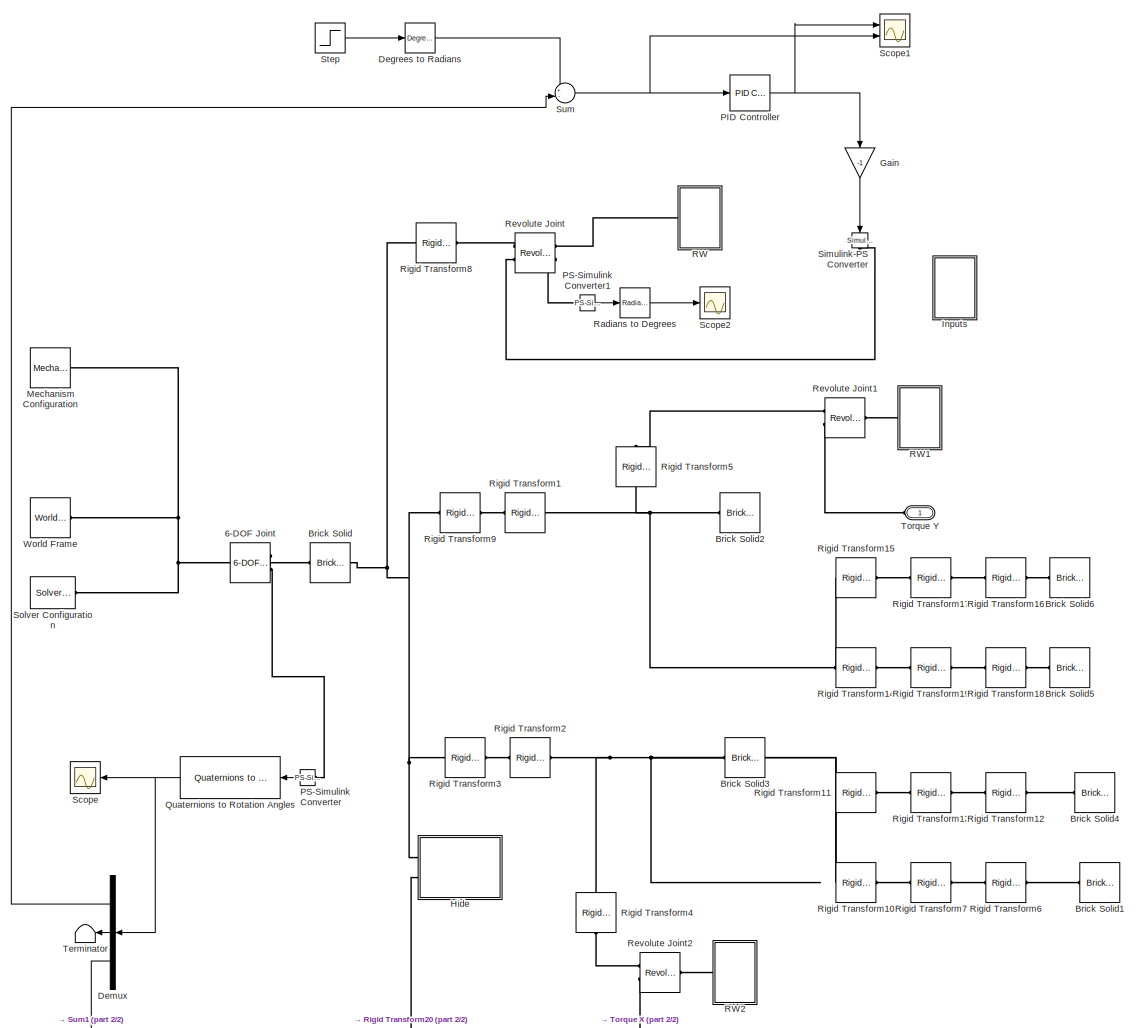
[diagram: root canvas - part 1/2, full width, top band]
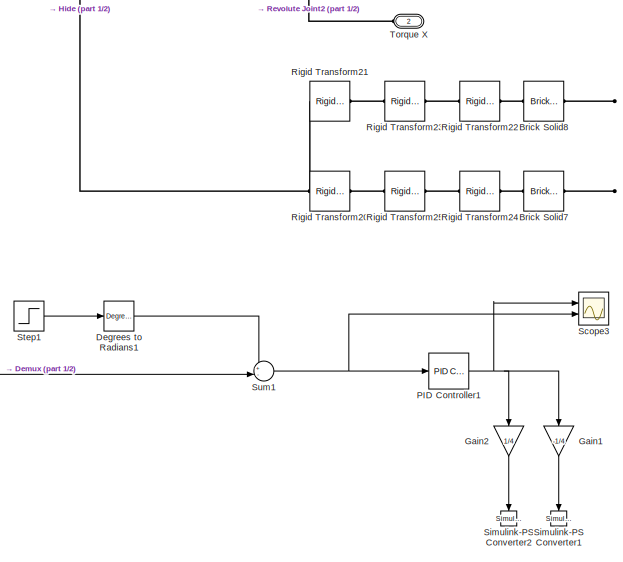
[diagram: root canvas - part 2/2, bottom center region]
MODEL slx_54c2c7942b76
KIND model
CONFIG AbsTol = auto
CONFIG EnableMultiTasking = off
CONFIG FixedStep = 0.01
CONFIG MaxStep = auto
CONFIG MinStep = auto
CONFIG RelTol = 1e-3
CONFIG SampleTimeConstraint = Unconstrained
CONFIG Solver = FixedStepAuto
CONFIG SolverName = FixedStepAuto
CONFIG StartTime = 0.0
CONFIG StopTime = 400
BLOCK [Reference] 6-DOF Joint  REF=sm_lib/Joints/6-DOF Joint
  Ports = [0, 0, 0, 0, 0, 1, 2]
  SourceBlock = sm_lib/Joints/6-DOF Joint
  SourceProductBaseCode = MS
  SourceProductName = Simscape Multibody
  SourceType = 6-DOF Joint
BLOCK [Reference] Brick Solid  REF=sm_lib/Body Elements/Brick Solid
  Ports = [0, 0, 0, 0, 0, 1, 1]
  SourceBlock = sm_lib/Body Elements/Brick Solid
  SourceProductBaseCode = MS
  SourceProductName = Simscape Multibody
  SourceType = Brick Solid
BLOCK [Reference] Brick Solid1  REF=sm_lib/Body Elements/Brick Solid
  Ports = [0, 0, 0, 0, 0, 1, 1]
  SourceBlock = sm_lib/Body Elements/Brick Solid
  SourceProductBaseCode = MS
  SourceProductName = Simscape Multibody
  SourceType = Brick Solid
BLOCK [Reference] Brick Solid2  REF=sm_lib/Body Elements/Brick Solid
  Ports = [0, 0, 0, 0, 0, 0, 1]
  SourceBlock = sm_lib/Body Elements/Brick Solid
  SourceProductBaseCode = MS
  SourceProductName = Simscape Multibody
  SourceType = Brick Solid
BLOCK [Reference] Brick Solid3  REF=sm_lib/Body Elements/Brick Solid
  Ports = [0, 0, 0, 0, 0, 0, 1]
  SourceBlock = sm_lib/Body Elements/Brick Solid
  SourceProductBaseCode = MS
  SourceProductName = Simscape Multibody
  SourceType = Brick Solid
BLOCK [Reference] Brick Solid4  REF=sm_lib/Body Elements/Brick Solid
  Ports = [0, 0, 0, 0, 0, 1, 1]
  SourceBlock = sm_lib/Body Elements/Brick Solid
  SourceProductBaseCode = MS
  SourceProductName = Simscape Multibody
  SourceType = Brick Solid
BLOCK [Reference] Brick Solid5  REF=sm_lib/Body Elements/Brick Solid
  Commented = on
  Ports = [0, 0, 0, 0, 0, 0, 1]
  SourceBlock = sm_lib/Body Elements/Brick Solid
  SourceProductBaseCode = MS
  SourceProductName = Simscape Multibody
  SourceType = Brick Solid
BLOCK [Reference] Brick Solid6  REF=sm_lib/Body Elements/Brick Solid
  Commented = on
  Ports = [0, 0, 0, 0, 0, 0, 1]
  SourceBlock = sm_lib/Body Elements/Brick Solid
  SourceProductBaseCode = MS
  SourceProductName = Simscape Multibody
  SourceType = Brick Solid
BLOCK [Reference] Brick Solid7  REF=sm_lib/Body Elements/Brick Solid
  Ports = [0, 0, 0, 0, 0, 1, 1]
  SourceBlock = sm_lib/Body Elements/Brick Solid
  SourceProductBaseCode = MS
  SourceProductName = Simscape Multibody
  SourceType = Brick Solid
BLOCK [Reference] Brick Solid8  REF=sm_lib/Body Elements/Brick Solid
  Ports = [0, 0, 0, 0, 0, 1, 1]
  SourceBlock = sm_lib/Body Elements/Brick Solid
  SourceProductBaseCode = MS
  SourceProductName = Simscape Multibody
  SourceType = Brick Solid
BLOCK [Reference] Degrees to Radians  REF=simulink_extras/Transformations/Degrees to
Radians
  Ports = [1, 1]
  SourceBlock = simulink_extras/Transformations/Degrees to\nRadians
  SourceProductBaseCode = SL
  SourceProductName = Simulink
  SourceType = DegreesToRadians
BLOCK [Reference] Degrees to Radians1  REF=simulink_extras/Transformations/Degrees to
Radians
  Ports = [1, 1]
  SourceBlock = simulink_extras/Transformations/Degrees to\nRadians
  SourceProductBaseCode = SL
  SourceProductName = Simulink
  SourceType = DegreesToRadians
BLOCK [Demux] Demux
  DisplayOption = bar
  Outputs = 3
  Ports = [1, 3]
BLOCK [Gain] Gain
  Gain = -1
  OutDataTypeStr = Inherit: Inherit via internal rule
  ParamDataTypeStr = Inherit: Inherit via internal rule
  SaturateOnIntegerOverflow = off
BLOCK [Gain] Gain1
  Gain = -1/4
  OutDataTypeStr = Inherit: Inherit via internal rule
  ParamDataTypeStr = Inherit: Inherit via internal rule
  SaturateOnIntegerOverflow = off
BLOCK [Gain] Gain2
  Gain = 1/4
  OutDataTypeStr = Inherit: Inherit via internal rule
  ParamDataTypeStr = Inherit: Inherit via internal rule
  SaturateOnIntegerOverflow = off
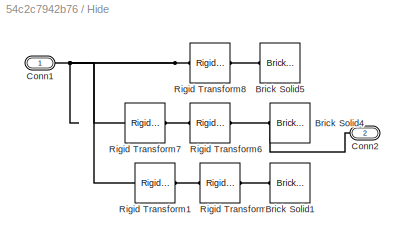
BLOCK [SubSystem] Hide
  Ports = [0, 0, 0, 0, 0, 2]
  RequestExecContextInheritance = off
BLOCK [Reference] Hide/Brick Solid1  REF=sm_lib/Body Elements/Brick Solid
  Ports = [0, 0, 0, 0, 0, 0, 1]
  SourceBlock = sm_lib/Body Elements/Brick Solid
  SourceProductBaseCode = MS
  SourceProductName = Simscape Multibody
  SourceType = Brick Solid
BLOCK [Reference] Hide/Brick Solid4  REF=sm_lib/Body Elements/Brick Solid
  Ports = [0, 0, 0, 0, 0, 0, 1]
  SourceBlock = sm_lib/Body Elements/Brick Solid
  SourceProductBaseCode = MS
  SourceProductName = Simscape Multibody
  SourceType = Brick Solid
BLOCK [Reference] Hide/Brick Solid5  REF=sm_lib/Body Elements/Brick Solid
  Ports = [0, 0, 0, 0, 0, 0, 1]
  SourceBlock = sm_lib/Body Elements/Brick Solid
  SourceProductBaseCode = MS
  SourceProductName = Simscape Multibody
  SourceType = Brick Solid
BLOCK [PMIOPort] Hide/Conn1
  Side = Left
BLOCK [PMIOPort] Hide/Conn2
  Port = 2
  Side = Left
BLOCK [Reference] Hide/Rigid Transform  REF=sm_lib/Frames and
Transforms/Rigid
Transform
  Ports = [0, 0, 0, 0, 0, 1, 1]
  SourceBlock = sm_lib/Frames and\nTransforms/Rigid\nTransform
  SourceProductBaseCode = MS
  SourceProductName = Simscape Multibody
  SourceType = Rigid\nTransform
BLOCK [Reference] Hide/Rigid Transform1  REF=sm_lib/Frames and
Transforms/Rigid
Transform
  Ports = [0, 0, 0, 0, 0, 1, 1]
  SourceBlock = sm_lib/Frames and\nTransforms/Rigid\nTransform
  SourceProductBaseCode = MS
  SourceProductName = Simscape Multibody
  SourceType = Rigid\nTransform
BLOCK [Reference] Hide/Rigid Transform6  REF=sm_lib/Frames and
Transforms/Rigid
Transform
  Ports = [0, 0, 0, 0, 0, 1, 1]
  SourceBlock = sm_lib/Frames and\nTransforms/Rigid\nTransform
  SourceProductBaseCode = MS
  SourceProductName = Simscape Multibody
  SourceType = Rigid\nTransform
BLOCK [Reference] Hide/Rigid Transform7  REF=sm_lib/Frames and
Transforms/Rigid
Transform
  Ports = [0, 0, 0, 0, 0, 1, 1]
  SourceBlock = sm_lib/Frames and\nTransforms/Rigid\nTransform
  SourceProductBaseCode = MS
  SourceProductName = Simscape Multibody
  SourceType = Rigid\nTransform
BLOCK [Reference] Hide/Rigid Transform8  REF=sm_lib/Frames and
Transforms/Rigid
Transform
  Ports = [0, 0, 0, 0, 0, 1, 1]
  SourceBlock = sm_lib/Frames and\nTransforms/Rigid\nTransform
  SourceProductBaseCode = MS
  SourceProductName = Simscape Multibody
  SourceType = Rigid\nTransform
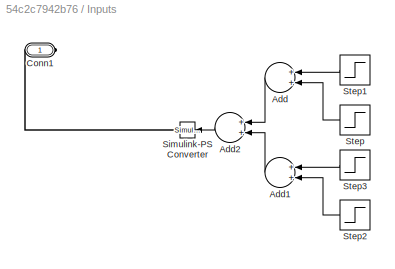
BLOCK [SubSystem] Inputs
  Commented = on
  Ports = [0, 0, 0, 0, 0, 0, 1]
  RequestExecContextInheritance = off
BLOCK [Sum] Inputs/Add
  InputSameDT = off
  OutDataTypeStr = Inherit: Inherit via internal rule
  Ports = [2, 1]
  SaturateOnIntegerOverflow = off
BLOCK [Sum] Inputs/Add1
  InputSameDT = off
  OutDataTypeStr = Inherit: Inherit via internal rule
  Ports = [2, 1]
  SaturateOnIntegerOverflow = off
BLOCK [Sum] Inputs/Add2
  InputSameDT = off
  OutDataTypeStr = Inherit: Inherit via internal rule
  Ports = [2, 1]
  SaturateOnIntegerOverflow = off
BLOCK [PMIOPort] Inputs/Conn1
  Side = Right
BLOCK [Reference] Inputs/Simulink-PS Converter  REF=nesl_utility/Simulink-PS
Converter
  Ports = [1, 0, 0, 0, 0, 0, 1]
  SourceBlock = nesl_utility/Simulink-PS\nConverter
  SourceProductBaseCode = SS
  SourceProductName = Simscape
  SourceType = Simulink-PS\nConverter
BLOCK [Step] Inputs/Step
  After = -10
  SampleTime = 0
  Time = 5
BLOCK [Step] Inputs/Step1
  After = 10
  SampleTime = 0
  Time = 3
BLOCK [Step] Inputs/Step2
  After = 10
  SampleTime = 0
  Time = 10
BLOCK [Step] Inputs/Step3
  After = -10
  SampleTime = 0
  Time = 8
BLOCK [Reference] Mechanism Configuration  REF=sm_lib/Utilities/Mechanism
Configuration
  Ports = [0, 0, 0, 0, 0, 0, 1]
  SourceBlock = sm_lib/Utilities/Mechanism\nConfiguration
  SourceProductBaseCode = MS
  SourceProductName = Simscape Multibody
  SourceType = Mechanism\nConfiguration
BLOCK [Reference] PID Controller  REF=simulink/Continuous/PID Controller
  Ports = [1, 1]
  SourceBlock = simulink/Continuous/PID Controller
  SourceProductBaseCode = SL
  SourceProductName = Simulink
  SourceType = PID 1dof
BLOCK [Reference] PID Controller1  REF=simulink/Continuous/PID Controller
  Ports = [1, 1]
  SourceBlock = simulink/Continuous/PID Controller
  SourceProductBaseCode = SL
  SourceProductName = Simulink
  SourceType = PID 1dof
BLOCK [Reference] PS-Simulink Converter  REF=nesl_utility/PS-Simulink
Converter
  Ports = [0, 1, 0, 0, 0, 1]
  SourceBlock = nesl_utility/PS-Simulink\nConverter
  SourceProductBaseCode = SS
  SourceProductName = Simscape
  SourceType = PS-Simulink\nConverter
BLOCK [Reference] PS-Simulink Converter1  REF=nesl_utility/PS-Simulink
Converter
  Ports = [0, 1, 0, 0, 0, 1]
  SourceBlock = nesl_utility/PS-Simulink\nConverter
  SourceProductBaseCode = SS
  SourceProductName = Simscape
  SourceType = PS-Simulink\nConverter
BLOCK [Reference] Quaternions to Rotation Angles  REF=sharedtransform/Quaternions to Rotation Angles
  AttributesFormatString = Rotation Order: %<rotationOrder>
  Ports = [1, 1]
  SourceBlock = sharedtransform/Quaternions to Rotation Angles
  SourceProductBaseCode = AE
  SourceProductName = Aerospace Blockset
  SourceType = Quat2Ang
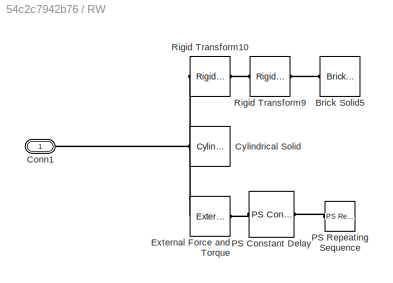
BLOCK [SubSystem] RW
  Ports = [0, 0, 0, 0, 0, 1]
  RequestExecContextInheritance = off
BLOCK [Reference] RW/Brick Solid5  REF=sm_lib/Body Elements/Brick Solid
  Ports = [0, 0, 0, 0, 0, 0, 1]
  SourceBlock = sm_lib/Body Elements/Brick Solid
  SourceProductBaseCode = MS
  SourceProductName = Simscape Multibody
  SourceType = Brick Solid
BLOCK [PMIOPort] RW/Conn1
  Side = Left
BLOCK [Reference] RW/Cylindrical Solid  REF=sm_lib/Body Elements/Cylindrical Solid
  Ports = [0, 0, 0, 0, 0, 0, 1]
  SourceBlock = sm_lib/Body Elements/Cylindrical Solid
  SourceProductBaseCode = MS
  SourceProductName = Simscape Multibody
  SourceType = Cylindrical Solid
BLOCK [Reference] RW/External Force and Torque  REF=sm_lib/Forces and
Torques/External Force
and Torque
  Commented = on
  Ports = [0, 0, 0, 0, 0, 1, 1]
  SourceBlock = sm_lib/Forces and\nTorques/External Force\nand Torque
  SourceProductBaseCode = MS
  SourceProductName = Simscape Multibody
  SourceType = External Force\nand Torque
BLOCK [Reference] RW/PS Constant Delay  REF=fl_lib/Physical Signals/Delays/PS Constant Delay
  Commented = on
  Ports = [0, 0, 0, 0, 0, 1, 1]
  SourceBlock = fl_lib/Physical Signals/Delays/PS Constant Delay
  SourceProductBaseCode = SS
  SourceProductName = Simscape
  SourceType = PS Constant Delay
BLOCK [Reference] RW/PS Repeating Sequence  REF=fl_lib/Physical Signals/Sources/PS Repeating
Sequence
  Commented = on
  Ports = [0, 0, 0, 0, 0, 0, 1]
  SourceBlock = fl_lib/Physical Signals/Sources/PS Repeating\nSequence
  SourceProductBaseCode = SS
  SourceProductName = Simscape
  SourceType = PS Repeating\nSequence
BLOCK [Reference] RW/Rigid Transform10  REF=sm_lib/Frames and
Transforms/Rigid
Transform
  Ports = [0, 0, 0, 0, 0, 1, 1]
  SourceBlock = sm_lib/Frames and\nTransforms/Rigid\nTransform
  SourceProductBaseCode = MS
  SourceProductName = Simscape Multibody
  SourceType = Rigid\nTransform
BLOCK [Reference] RW/Rigid Transform9  REF=sm_lib/Frames and
Transforms/Rigid
Transform
  Ports = [0, 0, 0, 0, 0, 1, 1]
  SourceBlock = sm_lib/Frames and\nTransforms/Rigid\nTransform
  SourceProductBaseCode = MS
  SourceProductName = Simscape Multibody
  SourceType = Rigid\nTransform
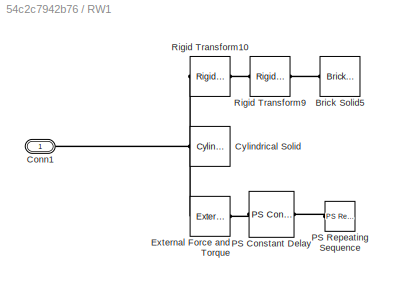
BLOCK [SubSystem] RW1
  Ports = [0, 0, 0, 0, 0, 1]
  RequestExecContextInheritance = off
BLOCK [Reference] RW1/Brick Solid5  REF=sm_lib/Body Elements/Brick Solid
  Ports = [0, 0, 0, 0, 0, 0, 1]
  SourceBlock = sm_lib/Body Elements/Brick Solid
  SourceProductBaseCode = MS
  SourceProductName = Simscape Multibody
  SourceType = Brick Solid
BLOCK [PMIOPort] RW1/Conn1
  Side = Left
BLOCK [Reference] RW1/Cylindrical Solid  REF=sm_lib/Body Elements/Cylindrical Solid
  Ports = [0, 0, 0, 0, 0, 0, 1]
  SourceBlock = sm_lib/Body Elements/Cylindrical Solid
  SourceProductBaseCode = MS
  SourceProductName = Simscape Multibody
  SourceType = Cylindrical Solid
BLOCK [Reference] RW1/External Force and Torque  REF=sm_lib/Forces and
Torques/External Force
and Torque
  Commented = on
  Ports = [0, 0, 0, 0, 0, 1, 1]
  SourceBlock = sm_lib/Forces and\nTorques/External Force\nand Torque
  SourceProductBaseCode = MS
  SourceProductName = Simscape Multibody
  SourceType = External Force\nand Torque
BLOCK [Reference] RW1/PS Constant Delay  REF=fl_lib/Physical Signals/Delays/PS Constant Delay
  Commented = on
  Ports = [0, 0, 0, 0, 0, 1, 1]
  SourceBlock = fl_lib/Physical Signals/Delays/PS Constant Delay
  SourceProductBaseCode = SS
  SourceProductName = Simscape
  SourceType = PS Constant Delay
BLOCK [Reference] RW1/PS Repeating Sequence  REF=fl_lib/Physical Signals/Sources/PS Repeating
Sequence
  Commented = on
  Ports = [0, 0, 0, 0, 0, 0, 1]
  SourceBlock = fl_lib/Physical Signals/Sources/PS Repeating\nSequence
  SourceProductBaseCode = SS
  SourceProductName = Simscape
  SourceType = PS Repeating\nSequence
BLOCK [Reference] RW1/Rigid Transform10  REF=sm_lib/Frames and
Transforms/Rigid
Transform
  Ports = [0, 0, 0, 0, 0, 1, 1]
  SourceBlock = sm_lib/Frames and\nTransforms/Rigid\nTransform
  SourceProductBaseCode = MS
  SourceProductName = Simscape Multibody
  SourceType = Rigid\nTransform
BLOCK [Reference] RW1/Rigid Transform9  REF=sm_lib/Frames and
Transforms/Rigid
Transform
  Ports = [0, 0, 0, 0, 0, 1, 1]
  SourceBlock = sm_lib/Frames and\nTransforms/Rigid\nTransform
  SourceProductBaseCode = MS
  SourceProductName = Simscape Multibody
  SourceType = Rigid\nTransform
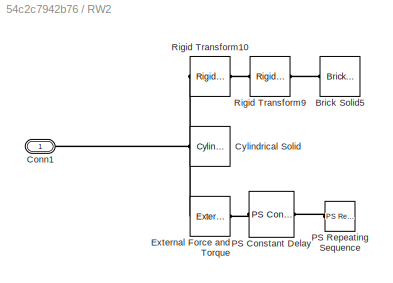
BLOCK [SubSystem] RW2
  Ports = [0, 0, 0, 0, 0, 1]
  RequestExecContextInheritance = off
BLOCK [Reference] RW2/Brick Solid5  REF=sm_lib/Body Elements/Brick Solid
  Ports = [0, 0, 0, 0, 0, 0, 1]
  SourceBlock = sm_lib/Body Elements/Brick Solid
  SourceProductBaseCode = MS
  SourceProductName = Simscape Multibody
  SourceType = Brick Solid
BLOCK [PMIOPort] RW2/Conn1
  Side = Left
BLOCK [Reference] RW2/Cylindrical Solid  REF=sm_lib/Body Elements/Cylindrical Solid
  Ports = [0, 0, 0, 0, 0, 0, 1]
  SourceBlock = sm_lib/Body Elements/Cylindrical Solid
  SourceProductBaseCode = MS
  SourceProductName = Simscape Multibody
  SourceType = Cylindrical Solid
BLOCK [Reference] RW2/External Force and Torque  REF=sm_lib/Forces and
Torques/External Force
and Torque
  Commented = on
  Ports = [0, 0, 0, 0, 0, 1, 1]
  SourceBlock = sm_lib/Forces and\nTorques/External Force\nand Torque
  SourceProductBaseCode = MS
  SourceProductName = Simscape Multibody
  SourceType = External Force\nand Torque
BLOCK [Reference] RW2/PS Constant Delay  REF=fl_lib/Physical Signals/Delays/PS Constant Delay
  Commented = on
  Ports = [0, 0, 0, 0, 0, 1, 1]
  SourceBlock = fl_lib/Physical Signals/Delays/PS Constant Delay
  SourceProductBaseCode = SS
  SourceProductName = Simscape
  SourceType = PS Constant Delay
BLOCK [Reference] RW2/PS Repeating Sequence  REF=fl_lib/Physical Signals/Sources/PS Repeating
Sequence
  Commented = on
  Ports = [0, 0, 0, 0, 0, 0, 1]
  SourceBlock = fl_lib/Physical Signals/Sources/PS Repeating\nSequence
  SourceProductBaseCode = SS
  SourceProductName = Simscape
  SourceType = PS Repeating\nSequence
BLOCK [Reference] RW2/Rigid Transform10  REF=sm_lib/Frames and
Transforms/Rigid
Transform
  Ports = [0, 0, 0, 0, 0, 1, 1]
  SourceBlock = sm_lib/Frames and\nTransforms/Rigid\nTransform
  SourceProductBaseCode = MS
  SourceProductName = Simscape Multibody
  SourceType = Rigid\nTransform
BLOCK [Reference] RW2/Rigid Transform9  REF=sm_lib/Frames and
Transforms/Rigid
Transform
  Ports = [0, 0, 0, 0, 0, 1, 1]
  SourceBlock = sm_lib/Frames and\nTransforms/Rigid\nTransform
  SourceProductBaseCode = MS
  SourceProductName = Simscape Multibody
  SourceType = Rigid\nTransform
BLOCK [Reference] Radians to Degrees  REF=simulink_extras/Transformations/Radians
to Degrees
  Ports = [1, 1]
  SourceBlock = simulink_extras/Transformations/Radians\nto Degrees
  SourceProductBaseCode = SL
  SourceProductName = Simulink
  SourceType = RadiansToDegrees
BLOCK [Reference] Revolute Joint  REF=sm_lib/Joints/Revolute Joint
  Ports = [0, 0, 0, 0, 0, 2, 2]
  SourceBlock = sm_lib/Joints/Revolute Joint
  SourceProductBaseCode = MS
  SourceProductName = Simscape Multibody
  SourceType = Revolute Joint
BLOCK [Reference] Revolute Joint1  REF=sm_lib/Joints/Revolute Joint
  Ports = [0, 0, 0, 0, 0, 2, 1]
  SourceBlock = sm_lib/Joints/Revolute Joint
  SourceProductBaseCode = MS
  SourceProductName = Simscape Multibody
  SourceType = Revolute Joint
BLOCK [Reference] Revolute Joint2  REF=sm_lib/Joints/Revolute Joint
  Ports = [0, 0, 0, 0, 0, 2, 1]
  SourceBlock = sm_lib/Joints/Revolute Joint
  SourceProductBaseCode = MS
  SourceProductName = Simscape Multibody
  SourceType = Revolute Joint
BLOCK [Reference] Rigid Transform1  REF=sm_lib/Frames and
Transforms/Rigid
Transform
  Ports = [0, 0, 0, 0, 0, 1, 1]
  SourceBlock = sm_lib/Frames and\nTransforms/Rigid\nTransform
  SourceProductBaseCode = MS
  SourceProductName = Simscape Multibody
  SourceType = Rigid\nTransform
BLOCK [Reference] Rigid Transform10  REF=sm_lib/Frames and
Transforms/Rigid
Transform
  Ports = [0, 0, 0, 0, 0, 1, 1]
  SourceBlock = sm_lib/Frames and\nTransforms/Rigid\nTransform
  SourceProductBaseCode = MS
  SourceProductName = Simscape Multibody
  SourceType = Rigid\nTransform
BLOCK [Reference] Rigid Transform11  REF=sm_lib/Frames and
Transforms/Rigid
Transform
  Ports = [0, 0, 0, 0, 0, 1, 1]
  SourceBlock = sm_lib/Frames and\nTransforms/Rigid\nTransform
  SourceProductBaseCode = MS
  SourceProductName = Simscape Multibody
  SourceType = Rigid\nTransform
BLOCK [Reference] Rigid Transform12  REF=sm_lib/Frames and
Transforms/Rigid
Transform
  Ports = [0, 0, 0, 0, 0, 1, 1]
  SourceBlock = sm_lib/Frames and\nTransforms/Rigid\nTransform
  SourceProductBaseCode = MS
  SourceProductName = Simscape Multibody
  SourceType = Rigid\nTransform
BLOCK [Reference] Rigid Transform13  REF=sm_lib/Frames and
Transforms/Rigid
Transform
  Ports = [0, 0, 0, 0, 0, 1, 1]
  SourceBlock = sm_lib/Frames and\nTransforms/Rigid\nTransform
  SourceProductBaseCode = MS
  SourceProductName = Simscape Multibody
  SourceType = Rigid\nTransform
BLOCK [Reference] Rigid Transform14  REF=sm_lib/Frames and
Transforms/Rigid
Transform
  Commented = on
  Ports = [0, 0, 0, 0, 0, 1, 1]
  SourceBlock = sm_lib/Frames and\nTransforms/Rigid\nTransform
  SourceProductBaseCode = MS
  SourceProductName = Simscape Multibody
  SourceType = Rigid\nTransform
BLOCK [Reference] Rigid Transform15  REF=sm_lib/Frames and
Transforms/Rigid
Transform
  Commented = on
  Ports = [0, 0, 0, 0, 0, 1, 1]
  SourceBlock = sm_lib/Frames and\nTransforms/Rigid\nTransform
  SourceProductBaseCode = MS
  SourceProductName = Simscape Multibody
  SourceType = Rigid\nTransform
BLOCK [Reference] Rigid Transform16  REF=sm_lib/Frames and
Transforms/Rigid
Transform
  Commented = on
  Ports = [0, 0, 0, 0, 0, 1, 1]
  SourceBlock = sm_lib/Frames and\nTransforms/Rigid\nTransform
  SourceProductBaseCode = MS
  SourceProductName = Simscape Multibody
  SourceType = Rigid\nTransform
BLOCK [Reference] Rigid Transform17  REF=sm_lib/Frames and
Transforms/Rigid
Transform
  Commented = on
  Ports = [0, 0, 0, 0, 0, 1, 1]
  SourceBlock = sm_lib/Frames and\nTransforms/Rigid\nTransform
  SourceProductBaseCode = MS
  SourceProductName = Simscape Multibody
  SourceType = Rigid\nTransform
BLOCK [Reference] Rigid Transform18  REF=sm_lib/Frames and
Transforms/Rigid
Transform
  Commented = on
  Ports = [0, 0, 0, 0, 0, 1, 1]
  SourceBlock = sm_lib/Frames and\nTransforms/Rigid\nTransform
  SourceProductBaseCode = MS
  SourceProductName = Simscape Multibody
  SourceType = Rigid\nTransform
BLOCK [Reference] Rigid Transform19  REF=sm_lib/Frames and
Transforms/Rigid
Transform
  Commented = on
  Ports = [0, 0, 0, 0, 0, 1, 1]
  SourceBlock = sm_lib/Frames and\nTransforms/Rigid\nTransform
  SourceProductBaseCode = MS
  SourceProductName = Simscape Multibody
  SourceType = Rigid\nTransform
BLOCK [Reference] Rigid Transform2  REF=sm_lib/Frames and
Transforms/Rigid
Transform
  Ports = [0, 0, 0, 0, 0, 1, 1]
  SourceBlock = sm_lib/Frames and\nTransforms/Rigid\nTransform
  SourceProductBaseCode = MS
  SourceProductName = Simscape Multibody
  SourceType = Rigid\nTransform
BLOCK [Reference] Rigid Transform20  REF=sm_lib/Frames and
Transforms/Rigid
Transform
  Ports = [0, 0, 0, 0, 0, 1, 1]
  SourceBlock = sm_lib/Frames and\nTransforms/Rigid\nTransform
  SourceProductBaseCode = MS
  SourceProductName = Simscape Multibody
  SourceType = Rigid\nTransform
BLOCK [Reference] Rigid Transform21  REF=sm_lib/Frames and
Transforms/Rigid
Transform
  Ports = [0, 0, 0, 0, 0, 1, 1]
  SourceBlock = sm_lib/Frames and\nTransforms/Rigid\nTransform
  SourceProductBaseCode = MS
  SourceProductName = Simscape Multibody
  SourceType = Rigid\nTransform
BLOCK [Reference] Rigid Transform22  REF=sm_lib/Frames and
Transforms/Rigid
Transform
  Ports = [0, 0, 0, 0, 0, 1, 1]
  SourceBlock = sm_lib/Frames and\nTransforms/Rigid\nTransform
  SourceProductBaseCode = MS
  SourceProductName = Simscape Multibody
  SourceType = Rigid\nTransform
BLOCK [Reference] Rigid Transform23  REF=sm_lib/Frames and
Transforms/Rigid
Transform
  Ports = [0, 0, 0, 0, 0, 1, 1]
  SourceBlock = sm_lib/Frames and\nTransforms/Rigid\nTransform
  SourceProductBaseCode = MS
  SourceProductName = Simscape Multibody
  SourceType = Rigid\nTransform
BLOCK [Reference] Rigid Transform24  REF=sm_lib/Frames and
Transforms/Rigid
Transform
  Ports = [0, 0, 0, 0, 0, 1, 1]
  SourceBlock = sm_lib/Frames and\nTransforms/Rigid\nTransform
  SourceProductBaseCode = MS
  SourceProductName = Simscape Multibody
  SourceType = Rigid\nTransform
BLOCK [Reference] Rigid Transform25  REF=sm_lib/Frames and
Transforms/Rigid
Transform
  Ports = [0, 0, 0, 0, 0, 1, 1]
  SourceBlock = sm_lib/Frames and\nTransforms/Rigid\nTransform
  SourceProductBaseCode = MS
  SourceProductName = Simscape Multibody
  SourceType = Rigid\nTransform
BLOCK [Reference] Rigid Transform3  REF=sm_lib/Frames and
Transforms/Rigid
Transform
  Ports = [0, 0, 0, 0, 0, 1, 1]
  SourceBlock = sm_lib/Frames and\nTransforms/Rigid\nTransform
  SourceProductBaseCode = MS
  SourceProductName = Simscape Multibody
  SourceType = Rigid\nTransform
BLOCK [Reference] Rigid Transform4  REF=sm_lib/Frames and
Transforms/Rigid
Transform
  Ports = [0, 0, 0, 0, 0, 1, 1]
  SourceBlock = sm_lib/Frames and\nTransforms/Rigid\nTransform
  SourceProductBaseCode = MS
  SourceProductName = Simscape Multibody
  SourceType = Rigid\nTransform
BLOCK [Reference] Rigid Transform5  REF=sm_lib/Frames and
Transforms/Rigid
Transform
  Ports = [0, 0, 0, 0, 0, 1, 1]
  SourceBlock = sm_lib/Frames and\nTransforms/Rigid\nTransform
  SourceProductBaseCode = MS
  SourceProductName = Simscape Multibody
  SourceType = Rigid\nTransform
BLOCK [Reference] Rigid Transform6  REF=sm_lib/Frames and
Transforms/Rigid
Transform
  Ports = [0, 0, 0, 0, 0, 1, 1]
  SourceBlock = sm_lib/Frames and\nTransforms/Rigid\nTransform
  SourceProductBaseCode = MS
  SourceProductName = Simscape Multibody
  SourceType = Rigid\nTransform
BLOCK [Reference] Rigid Transform7  REF=sm_lib/Frames and
Transforms/Rigid
Transform
  Ports = [0, 0, 0, 0, 0, 1, 1]
  SourceBlock = sm_lib/Frames and\nTransforms/Rigid\nTransform
  SourceProductBaseCode = MS
  SourceProductName = Simscape Multibody
  SourceType = Rigid\nTransform
BLOCK [Reference] Rigid Transform8  REF=sm_lib/Frames and
Transforms/Rigid
Transform
  Ports = [0, 0, 0, 0, 0, 1, 1]
  SourceBlock = sm_lib/Frames and\nTransforms/Rigid\nTransform
  SourceProductBaseCode = MS
  SourceProductName = Simscape Multibody
  SourceType = Rigid\nTransform
BLOCK [Reference] Rigid Transform9  REF=sm_lib/Frames and
Transforms/Rigid
Transform
  Ports = [0, 0, 0, 0, 0, 1, 1]
  SourceBlock = sm_lib/Frames and\nTransforms/Rigid\nTransform
  SourceProductBaseCode = MS
  SourceProductName = Simscape Multibody
  SourceType = Rigid\nTransform
BLOCK [Scope] Scope
  Floating = off
  NumInputPorts = 1
  Ports = [1]
  ScopeSpecificationString = Simulink.scopes.TimeScopeBlockCfg('CurrentConfiguration', extmgr.ConfigurationSet(extmgr.Configuration('Core','General UI',true),extmgr.Configuration('Core','Source UI',true),extmgr.Configuration('Sources','WiredSimulink',true),extmgr.Configuration('Visuals','Time Domain',true,'SerializedDisplays',{struct('MinYLimReal','-0.94566','MaxYLimReal','0.10667','YLabelReal','','MinYLimMag','0.00000','MaxY...<+1538ch>
BLOCK [Scope] Scope1
  Floating = off
  NumInputPorts = 2
  Ports = [2]
  ScopeSpecificationString = Simulink.scopes.TimeScopeBlockCfg('CurrentConfiguration', extmgr.ConfigurationSet(extmgr.Configuration('Core','General UI',true),extmgr.Configuration('Core','Source UI',true),extmgr.Configuration('Sources','WiredSimulink',true,'DataLoggingVariableName','ScopeData1'),extmgr.Configuration('Visuals','Time Domain',true,'SerializedDisplays',{struct('MinYLimReal','-0.00011','MaxYLimReal','0.0001','YLabe...<+2067ch>
BLOCK [Scope] Scope2
  Floating = off
  NumInputPorts = 1
  Ports = [1]
  ScopeSpecificationString = Simulink.scopes.TimeScopeBlockCfg('CurrentConfiguration', extmgr.ConfigurationSet(extmgr.Configuration('Core','General UI',true),extmgr.Configuration('Core','Source UI',true),extmgr.Configuration('Sources','WiredSimulink',true,'DataLoggingVariableName','ScopeData2'),extmgr.Configuration('Visuals','Time Domain',true,'SerializedDisplays',{struct('MinYLimReal','322.66018','MaxYLimReal','367.69206','Y...<+1420ch>
BLOCK [Scope] Scope3
  Floating = off
  NumInputPorts = 2
  Ports = [2]
  ScopeSpecificationString = Simulink.scopes.TimeScopeBlockCfg('CurrentConfiguration', extmgr.ConfigurationSet(extmgr.Configuration('Core','General UI',true),extmgr.Configuration('Core','Source UI',true),extmgr.Configuration('Sources','WiredSimulink',true,'DataLoggingVariableName','ScopeData1'),extmgr.Configuration('Visuals','Time Domain',true,'SerializedDisplays',{struct('MinYLimReal','-49.15791','MaxYLimReal','441.80303','Y...<+2075ch>
BLOCK [Reference] Simulink-PS Converter  REF=nesl_utility/Simulink-PS
Converter
  Ports = [1, 0, 0, 0, 0, 0, 1]
  SourceBlock = nesl_utility/Simulink-PS\nConverter
  SourceProductBaseCode = SS
  SourceProductName = Simscape
  SourceType = Simulink-PS\nConverter
BLOCK [Reference] Simulink-PS Converter1  REF=nesl_utility/Simulink-PS
Converter
  Ports = [1, 0, 0, 0, 0, 0, 1]
  SourceBlock = nesl_utility/Simulink-PS\nConverter
  SourceProductBaseCode = SS
  SourceProductName = Simscape
  SourceType = Simulink-PS\nConverter
BLOCK [Reference] Simulink-PS Converter2  REF=nesl_utility/Simulink-PS
Converter
  Ports = [1, 0, 0, 0, 0, 0, 1]
  SourceBlock = nesl_utility/Simulink-PS\nConverter
  SourceProductBaseCode = SS
  SourceProductName = Simscape
  SourceType = Simulink-PS\nConverter
BLOCK [Reference] Solver Configuration  REF=nesl_utility/Solver
Configuration
  Ports = [0, 0, 0, 0, 0, 0, 1]
  SourceBlock = nesl_utility/Solver\nConfiguration
  SourceProductBaseCode = SS
  SourceProductName = Simscape
  SourceType = Solver\nConfiguration
BLOCK [Step] Step
  After = 45
  SampleTime = 0
  Time = 3
BLOCK [Step] Step1
  After = 45
  SampleTime = 0
  Time = 3
BLOCK [Sum] Sum
  IconShape = round
  InputSameDT = off
  Inputs = +-|
  OutDataTypeStr = Inherit: Inherit via internal rule
  Ports = [2, 1]
  SaturateOnIntegerOverflow = off
BLOCK [Sum] Sum1
  IconShape = round
  InputSameDT = off
  Inputs = +-|
  OutDataTypeStr = Inherit: Inherit via internal rule
  Ports = [2, 1]
  SaturateOnIntegerOverflow = off
BLOCK [Terminator] Terminator
BLOCK [PMIOPort] Torque X
  Port = 2
  Side = Left
BLOCK [PMIOPort] Torque Y
  Side = Left
BLOCK [Reference] World Frame  REF=sm_lib/Frames and
Transforms/World Frame
  Ports = [0, 0, 0, 0, 0, 0, 1]
  SourceBlock = sm_lib/Frames and\nTransforms/World Frame
  SourceProductBaseCode = MS
  SourceProductName = Simscape Multibody
  SourceType = World Frame
LINE Degrees to Radians1:1 -> Sum1:1
LINE Degrees to Radians:1 -> Sum:1
LINE Demux:1 -> Sum:2
LINE Demux:2 -> Terminator:1
LINE Demux:3 -> Sum1:2
LINE Gain1:1 -> Simulink-PS Converter1:1
LINE Gain2:1 -> Simulink-PS Converter2:1
LINE Gain:1 -> Simulink-PS Converter:1
LINE Inputs/Add1:1 -> Inputs/Add2:2
LINE Inputs/Add2:1 -> Inputs/Simulink-PS Converter:1
LINE Inputs/Add:1 -> Inputs/Add2:1
LINE Inputs/Step1:1 -> Inputs/Add:1
LINE Inputs/Step2:1 -> Inputs/Add1:2
LINE Inputs/Step3:1 -> Inputs/Add1:1
LINE Inputs/Step:1 -> Inputs/Add:2
NET PID Controller1:1 -> Gain1:1, Gain2:1, Scope3:1
NET PID Controller:1 -> Gain:1, Scope1:1
LINE PS-Simulink Converter1:1 -> Radians to Degrees:1
LINE PS-Simulink Converter:1 -> Quaternions to Rotation Angles:1
NET Quaternions to Rotation Angles:1 -> Demux:1, Scope:1
LINE Radians to Degrees:1 -> Scope2:1
LINE Step1:1 -> Degrees to Radians1:1
LINE Step:1 -> Degrees to Radians:1
NET Sum1:1 -> PID Controller1:1, Scope3:2
NET Sum:1 -> PID Controller:1, Scope1:2
PNET net1: 6-DOF Joint:LConn1 -- Mechanism Configuration:RConn1 -- Solver Configuration:RConn1 -- World Frame:RConn1
PLINE 6-DOF Joint:RConn1 -- Brick Solid:RConn1
PLINE 6-DOF Joint:RConn2 -- PS-Simulink Converter:LConn1
PLINE Brick Solid1:RConn1 -- Rigid Transform6:RConn1
PNET net2: Brick Solid2:RConn1 -- Rigid Transform14:LConn1 -- Rigid Transform15:LConn1 -- Rigid Transform1:RConn1 -- Rigid Transform5:LConn1
PNET net3: Brick Solid3:RConn1 -- Rigid Transform10:LConn1 -- Rigid Transform11:LConn1 -- Rigid Transform2:RConn1 -- Rigid Transform4:LConn1
PLINE Brick Solid4:RConn1 -- Rigid Transform12:RConn1
PLINE Brick Solid5:RConn1 -- Rigid Transform18:RConn1
PLINE Brick Solid6:RConn1 -- Rigid Transform16:RConn1
PLINE Brick Solid7:RConn1 -- Rigid Transform24:RConn1
PLINE Brick Solid8:RConn1 -- Rigid Transform22:RConn1
PNET net4: Brick Solid:LConn1 -- Hide:LConn1 -- Rigid Transform3:LConn1 -- Rigid Transform8:LConn1 -- Rigid Transform9:LConn1
PLINE Hide/Brick Solid1:RConn1 -- Hide/Rigid Transform:RConn1
PNET net5: Hide/Brick Solid4:RConn1 -- Hide/Conn2:RConn1 -- Hide/Rigid Transform6:RConn1
PLINE Hide/Brick Solid5:RConn1 -- Hide/Rigid Transform8:RConn1
PNET net6: Hide/Conn1:RConn1 -- Hide/Rigid Transform1:LConn1 -- Hide/Rigid Transform7:LConn1 -- Hide/Rigid Transform8:LConn1
PLINE Hide/Rigid Transform1:RConn1 -- Hide/Rigid Transform:LConn1
PLINE Hide/Rigid Transform6:LConn1 -- Hide/Rigid Transform7:RConn1
PNET net7: Hide:LConn2 -- Rigid Transform20:LConn1 -- Rigid Transform21:LConn1
PLINE Inputs/Conn1:RConn1 -- Inputs/Simulink-PS Converter:RConn1
PLINE PS-Simulink Converter1:LConn1 -- Revolute Joint:RConn2
PLINE RW/Brick Solid5:RConn1 -- RW/Rigid Transform9:RConn1
PNET net8: RW/Conn1:RConn1 -- RW/Cylindrical Solid:RConn1 -- RW/External Force and Torque:RConn1 -- RW/Rigid Transform10:LConn1
PLINE RW/External Force and Torque:LConn1 -- RW/PS Constant Delay:RConn1
PLINE RW/PS Constant Delay:LConn1 -- RW/PS Repeating Sequence:RConn1
PLINE RW/Rigid Transform10:RConn1 -- RW/Rigid Transform9:LConn1
PLINE RW1/Brick Solid5:RConn1 -- RW1/Rigid Transform9:RConn1
PNET net9: RW1/Conn1:RConn1 -- RW1/Cylindrical Solid:RConn1 -- RW1/External Force and Torque:RConn1 -- RW1/Rigid Transform10:LConn1
PLINE RW1/External Force and Torque:LConn1 -- RW1/PS Constant Delay:RConn1
PLINE RW1/PS Constant Delay:LConn1 -- RW1/PS Repeating Sequence:RConn1
PLINE RW1/Rigid Transform10:RConn1 -- RW1/Rigid Transform9:LConn1
PLINE RW1:LConn1 -- Revolute Joint1:RConn1
PLINE RW2/Brick Solid5:RConn1 -- RW2/Rigid Transform9:RConn1
PNET net10: RW2/Conn1:RConn1 -- RW2/Cylindrical Solid:RConn1 -- RW2/External Force and Torque:RConn1 -- RW2/Rigid Transform10:LConn1
PLINE RW2/External Force and Torque:LConn1 -- RW2/PS Constant Delay:RConn1
PLINE RW2/PS Constant Delay:LConn1 -- RW2/PS Repeating Sequence:RConn1
PLINE RW2/Rigid Transform10:RConn1 -- RW2/Rigid Transform9:LConn1
PLINE RW2:LConn1 -- Revolute Joint2:RConn1
PLINE RW:LConn1 -- Revolute Joint:RConn1
PLINE Revolute Joint1:LConn1 -- Rigid Transform5:RConn1
PLINE Revolute Joint1:LConn2 -- Torque Y:RConn1
PLINE Revolute Joint2:LConn1 -- Rigid Transform4:RConn1
PLINE Revolute Joint2:LConn2 -- Torque X:RConn1
PLINE Revolute Joint:LConn1 -- Rigid Transform8:RConn1
PLINE Revolute Joint:LConn2 -- Simulink-PS Converter:RConn1
PLINE Rigid Transform10:RConn1 -- Rigid Transform7:LConn1
PLINE Rigid Transform11:RConn1 -- Rigid Transform13:LConn1
PLINE Rigid Transform12:LConn1 -- Rigid Transform13:RConn1
PLINE Rigid Transform14:RConn1 -- Rigid Transform19:LConn1
PLINE Rigid Transform15:RConn1 -- Rigid Transform17:LConn1
PLINE Rigid Transform16:LConn1 -- Rigid Transform17:RConn1
PLINE Rigid Transform18:LConn1 -- Rigid Transform19:RConn1
PLINE Rigid Transform1:LConn1 -- Rigid Transform9:RConn1
PLINE Rigid Transform20:RConn1 -- Rigid Transform25:LConn1
PLINE Rigid Transform21:RConn1 -- Rigid Transform23:LConn1
PLINE Rigid Transform22:LConn1 -- Rigid Transform23:RConn1
PLINE Rigid Transform24:LConn1 -- Rigid Transform25:RConn1
PLINE Rigid Transform2:LConn1 -- Rigid Transform3:RConn1
PLINE Rigid Transform6:LConn1 -- Rigid Transform7:RConn1
note: NET lines group one-source signal fan-out (src -> all destinations, sorted); 1:1 wires keep LINE; PNET lines group multi-terminal physical nets as a canonical sorted terminal list (undirected conserving connections); 2-terminal nets keep the pairwise PLINE form
